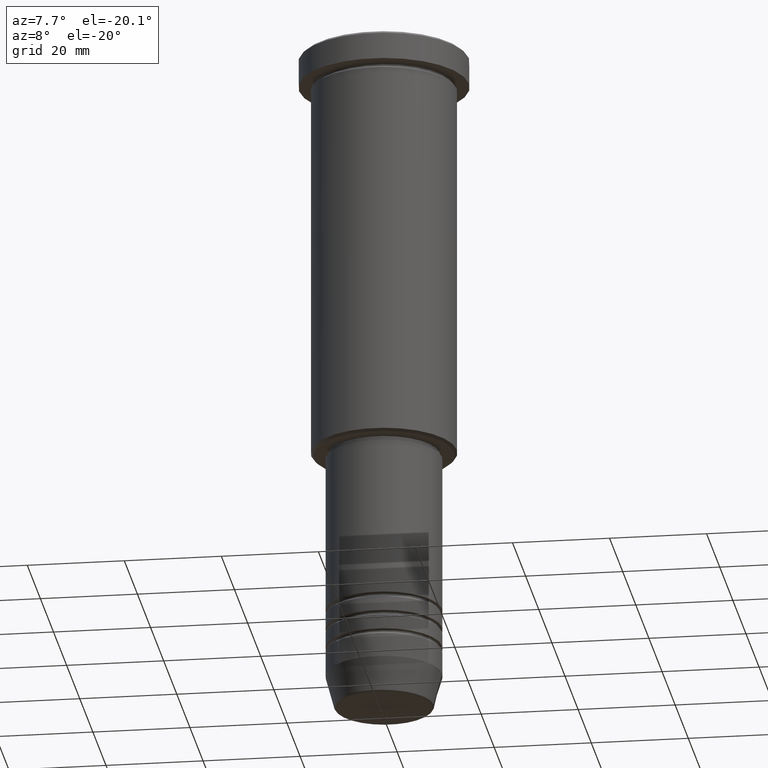
[diagram: clean part render]
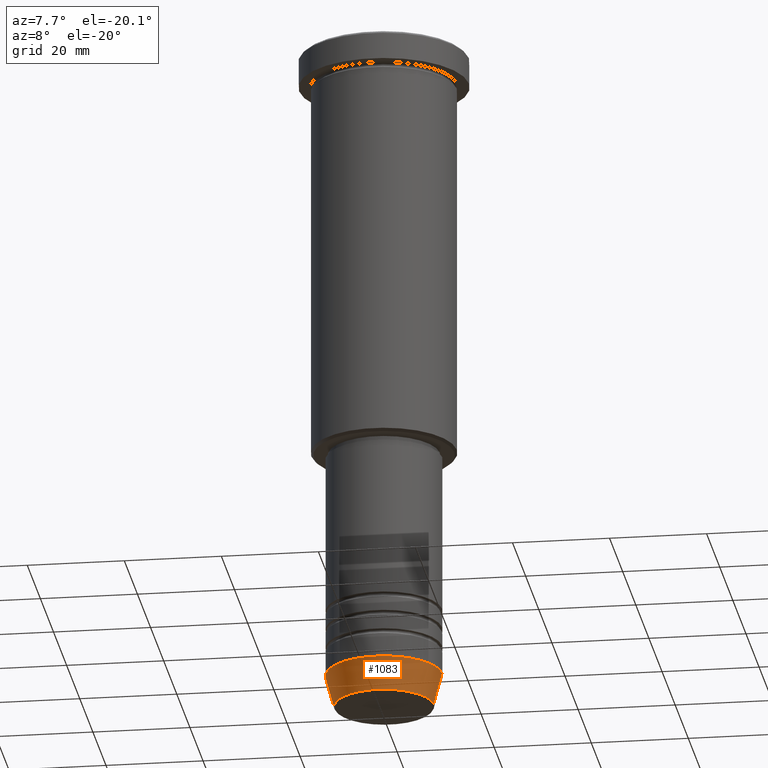
[diagram: same view with one face highlighted and labeled with its STEP entity id]
A machine part, auxiliary view. The second image highlights one B-rep face of the part: STEP entity #1083.
In plain terms, the highlighted conical surface has half-angle 15 deg.
Its self-contained STEP definition (entity closure, byte-faithful):
#29 = CARTESIAN_POINT ( 'NONE',  ( 0.000000000000000000, 0.000000000000000000, -134.0000000000000000 ) ) ;
#65 = DIRECTION ( 'NONE',  ( -0.000000000000000000, -0.000000000000000000, 1.000000000000000000 ) ) ;
#86 = EDGE_CURVE ( 'NONE', #914, #727, #87, .T. ) ;
#87 = LINE ( 'NONE', #521, #1142 ) ;
#88 = CARTESIAN_POINT ( 'NONE',  ( -12.00000000000000000, 1.469576158976823947E-15, -134.0000000000000000 ) ) ;
#94 = ORIENTED_EDGE ( 'NONE', *, *, #892, .T. ) ;
#95 = CARTESIAN_POINT ( 'NONE',  ( 12.00000000000000000, 0.000000000000000000, -134.0000000000000000 ) ) ;
#147 = DIRECTION ( 'NONE',  ( -0.000000000000000000, -0.000000000000000000, 1.000000000000000000 ) ) ;
#233 = ORIENTED_EDGE ( 'NONE', *, *, #86, .F. ) ;
#308 = VERTEX_POINT ( 'NONE', #463 ) ;
#341 = CIRCLE ( 'NONE', #476, 12.00000000000000000 ) ;
#400 = CARTESIAN_POINT ( 'NONE',  ( -10.22365507213719127, 1.360806402472382744E-15, -140.6294095225512706 ) ) ;
#436 = DIRECTION ( 'NONE',  ( 1.000000000000000000, 0.000000000000000000, 0.000000000000000000 ) ) ;
#463 = CARTESIAN_POINT ( 'NONE',  ( 10.22365507213719127, 0.000000000000000000, -140.6294095225512706 ) ) ;
#474 = DIRECTION ( 'NONE',  ( -0.000000000000000000, -0.000000000000000000, 1.000000000000000000 ) ) ;
#476 = AXIS2_PLACEMENT_3D ( 'NONE', #29, #474, #663 ) ;
#484 = VERTEX_POINT ( 'NONE', #95 ) ;
#516 = CARTESIAN_POINT ( 'NONE',  ( 0.000000000000000000, 0.000000000000000000, -140.6294095225512706 ) ) ;
#521 = CARTESIAN_POINT ( 'NONE',  ( -12.00000000000000000, 1.469576158976823947E-15, -134.0000000000000000 ) ) ;
#611 = CARTESIAN_POINT ( 'NONE',  ( 0.000000000000000000, 0.000000000000000000, -134.0000000000000000 ) ) ;
#617 = LINE ( 'NONE', #1077, #645 ) ;
#621 = EDGE_CURVE ( 'NONE', #727, #484, #341, .T. ) ;
#625 = ORIENTED_EDGE ( 'NONE', *, *, #687, .T. ) ;
#645 = VECTOR ( 'NONE', #907, 1000.000000000000000 ) ;
#663 = DIRECTION ( 'NONE',  ( 1.000000000000000000, 0.000000000000000000, 0.000000000000000000 ) ) ;
#687 = EDGE_CURVE ( 'NONE', #308, #484, #617, .T. ) ;
#727 = VERTEX_POINT ( 'NONE', #88 ) ;
#756 = CIRCLE ( 'NONE', #834, 10.22365507213719127 ) ;
#757 = AXIS2_PLACEMENT_3D ( 'NONE', #611, #65, #436 ) ;
#834 = AXIS2_PLACEMENT_3D ( 'NONE', #516, #147, #1059 ) ;
#892 = EDGE_CURVE ( 'NONE', #914, #308, #756, .T. ) ;
#907 = DIRECTION ( 'NONE',  ( 0.2588190451025213501, 0.000000000000000000, 0.9659258262890680902 ) ) ;
#911 = DIRECTION ( 'NONE',  ( -0.2588190451025213501, 3.169619151431772337E-17, 0.9659258262890680902 ) ) ;
#914 = VERTEX_POINT ( 'NONE', #400 ) ;
#976 = FACE_OUTER_BOUND ( 'NONE', #1061, .T. ) ;
#1059 = DIRECTION ( 'NONE',  ( 1.000000000000000000, 0.000000000000000000, 0.000000000000000000 ) ) ;
#1061 = EDGE_LOOP ( 'NONE', ( #233, #94, #625, #1141 ) ) ;
#1077 = CARTESIAN_POINT ( 'NONE',  ( 12.00000000000000000, 0.000000000000000000, -134.0000000000000000 ) ) ;
#1083 = ADVANCED_FACE ( 'NONE', ( #976 ), #1172, .T. ) ;
#1141 = ORIENTED_EDGE ( 'NONE', *, *, #621, .F. ) ;
#1142 = VECTOR ( 'NONE', #911, 1000.000000000000000 ) ;
#1172 = CONICAL_SURFACE ( 'NONE', #757, 12.00000000000000000, 0.2617993877991500740 ) ;